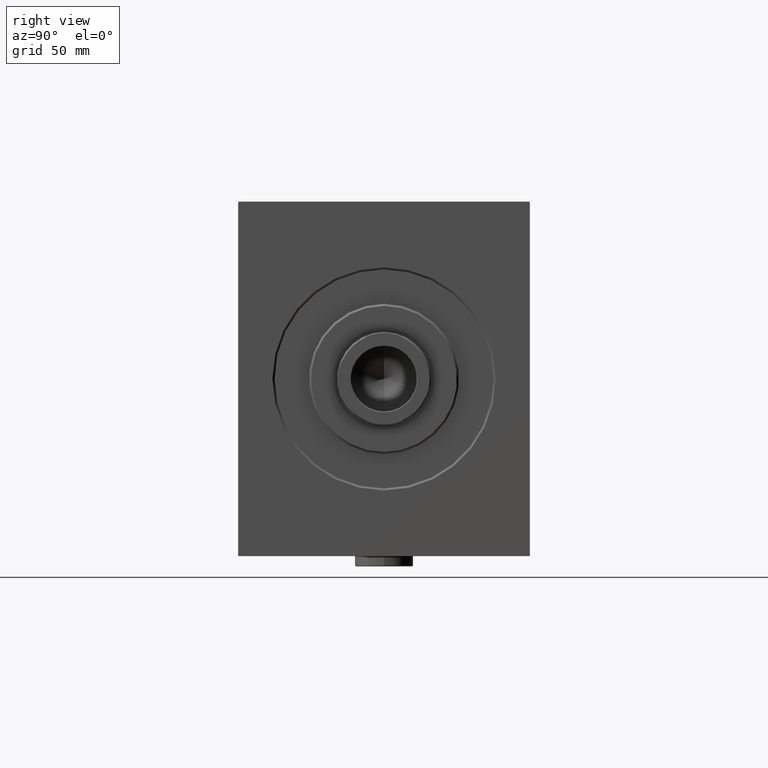
[diagram: clean part render]
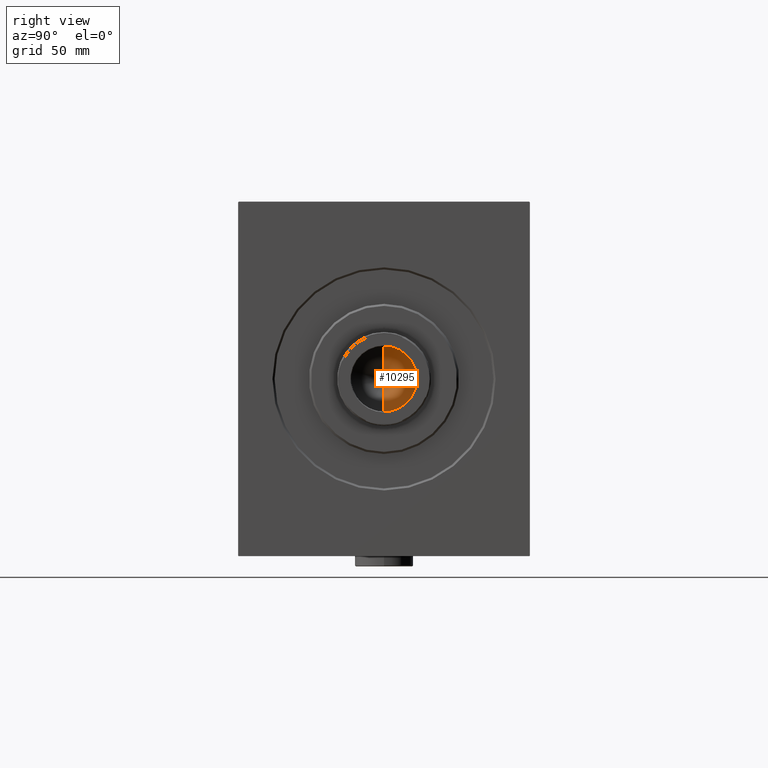
[diagram: same view with one face highlighted and labeled with its STEP entity id]
A machine part, right view. The second image highlights one B-rep face of the part: STEP entity #10295.
In plain terms, the highlighted conical surface has half-angle 59 deg.
Its self-contained STEP definition (entity closure, byte-faithful):
#2534 = AXIS2_PLACEMENT_3D ( 'NONE', #22934, #26586, #12681 ) ;
#3694 = ORIENTED_EDGE ( 'NONE', *, *, #27014, .F. ) ;
#6146 = AXIS2_PLACEMENT_3D ( 'NONE', #7365, #10326, #10997 ) ;
#7365 = CARTESIAN_POINT ( 'NONE',  ( 0.000000000000000000, 0.000000000000000000, 206.0000000000000000 ) ) ;
#8977 = CARTESIAN_POINT ( 'NONE',  ( 15.74999999999999289, 0.000000000000000000, 206.0000000000000000 ) ) ;
#10295 = ADVANCED_FACE ( 'NONE', ( #38565 ), #27250, .F. ) ;
#10326 = DIRECTION ( 'NONE',  ( -0.000000000000000000, -0.000000000000000000, 1.000000000000000000 ) ) ;
#10997 = DIRECTION ( 'NONE',  ( 1.000000000000000000, 0.000000000000000000, 0.000000000000000000 ) ) ;
#12681 = DIRECTION ( 'NONE',  ( 1.000000000000000000, 0.000000000000000000, 0.000000000000000000 ) ) ;
#14277 = CARTESIAN_POINT ( 'NONE',  ( -1.041392428426254229E-14, 0.000000000000000000, 196.5364452503159214 ) ) ;
#16977 = VERTEX_POINT ( 'NONE', #27442 ) ;
#18704 = CARTESIAN_POINT ( 'NONE',  ( 15.74999999999999289, 0.000000000000000000, 206.0000000000000000 ) ) ;
#22164 = CIRCLE ( 'NONE', #2534, 15.74999999999999289 ) ;
#22575 = DIRECTION ( 'NONE',  ( 0.8571673007021120005, 0.000000000000000000, 0.5150380749100547106 ) ) ;
#22934 = CARTESIAN_POINT ( 'NONE',  ( 0.000000000000000000, 0.000000000000000000, 206.0000000000000000 ) ) ;
#23205 = VERTEX_POINT ( 'NONE', #8977 ) ;
#23953 = VECTOR ( 'NONE', #35926, 1000.000000000000000 ) ;
#25669 = CARTESIAN_POINT ( 'NONE',  ( -15.74999999999999289, 1.928818708657080556E-15, 206.0000000000000000 ) ) ;
#26001 = LINE ( 'NONE', #18704, #37782 ) ;
#26586 = DIRECTION ( 'NONE',  ( -0.000000000000000000, -0.000000000000000000, 1.000000000000000000 ) ) ;
#27014 = EDGE_CURVE ( 'NONE', #39316, #16977, #39119, .T. ) ;
#27083 = EDGE_LOOP ( 'NONE', ( #3694, #32684, #37702 ) ) ;
#27210 = EDGE_CURVE ( 'NONE', #39316, #23205, #26001, .T. ) ;
#27250 = CONICAL_SURFACE ( 'NONE', #6146, 15.74999999999999289, 1.029744258676653867 ) ;
#27442 = CARTESIAN_POINT ( 'NONE',  ( -15.74999999999999289, 1.928818708657080556E-15, 206.0000000000000000 ) ) ;
#32684 = ORIENTED_EDGE ( 'NONE', *, *, #27210, .T. ) ;
#32870 = EDGE_CURVE ( 'NONE', #23205, #16977, #22164, .T. ) ;
#35926 = DIRECTION ( 'NONE',  ( -0.8571673007021120005, 1.049727191138618326E-16, 0.5150380749100547106 ) ) ;
#37702 = ORIENTED_EDGE ( 'NONE', *, *, #32870, .T. ) ;
#37782 = VECTOR ( 'NONE', #22575, 1000.000000000000000 ) ;
#38565 = FACE_OUTER_BOUND ( 'NONE', #27083, .T. ) ;
#39119 = LINE ( 'NONE', #25669, #23953 ) ;
#39316 = VERTEX_POINT ( 'NONE', #14277 ) ;